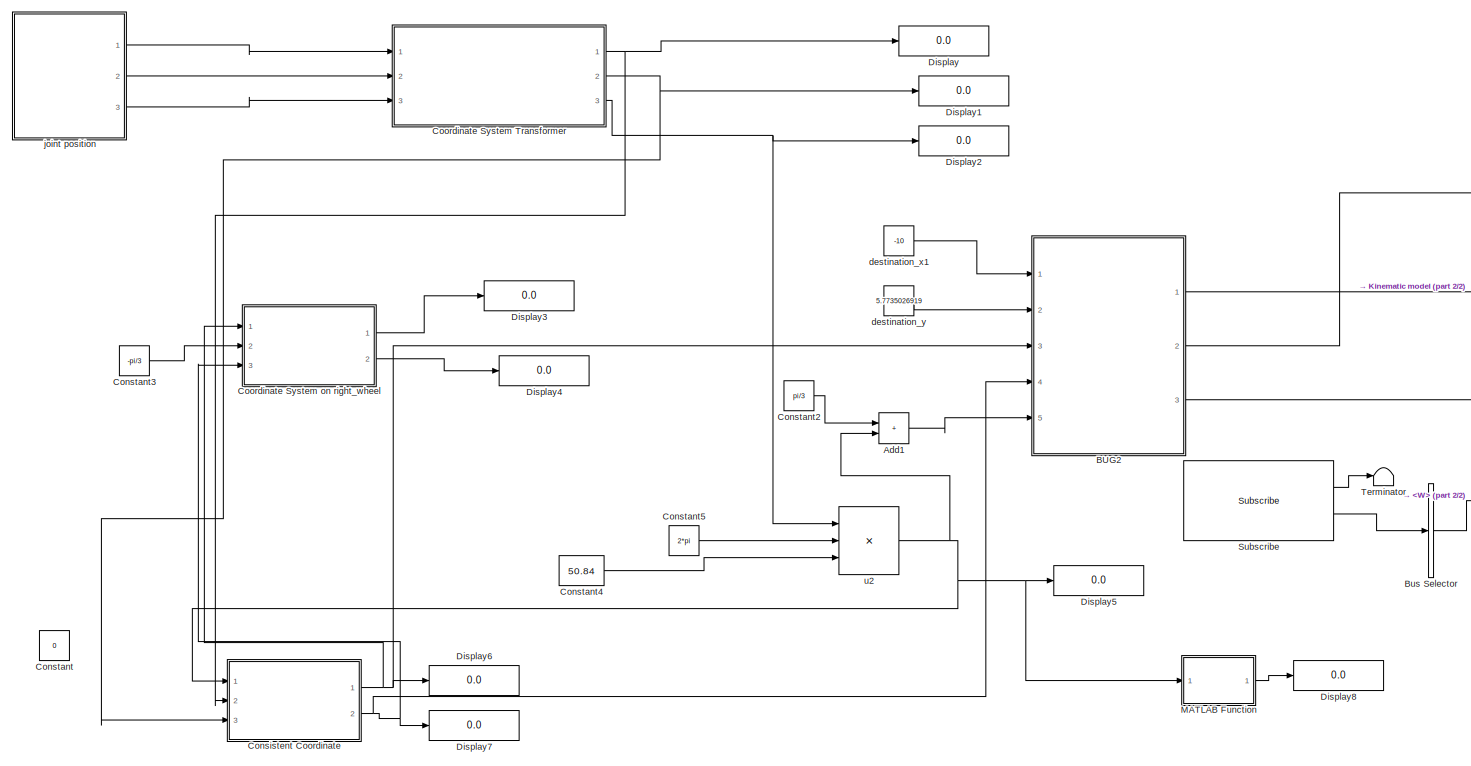
[diagram: root canvas - part 1/2, most of the canvas]
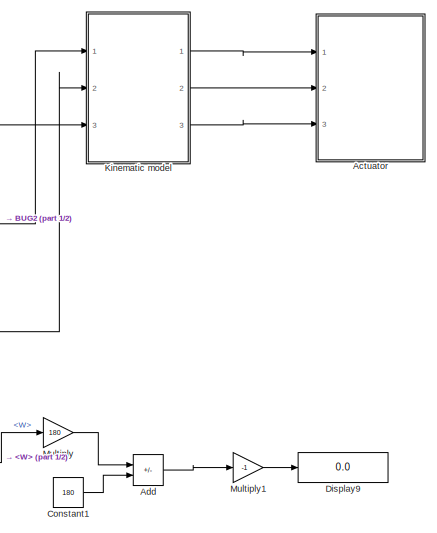
[diagram: root canvas - part 2/2, middle right region]
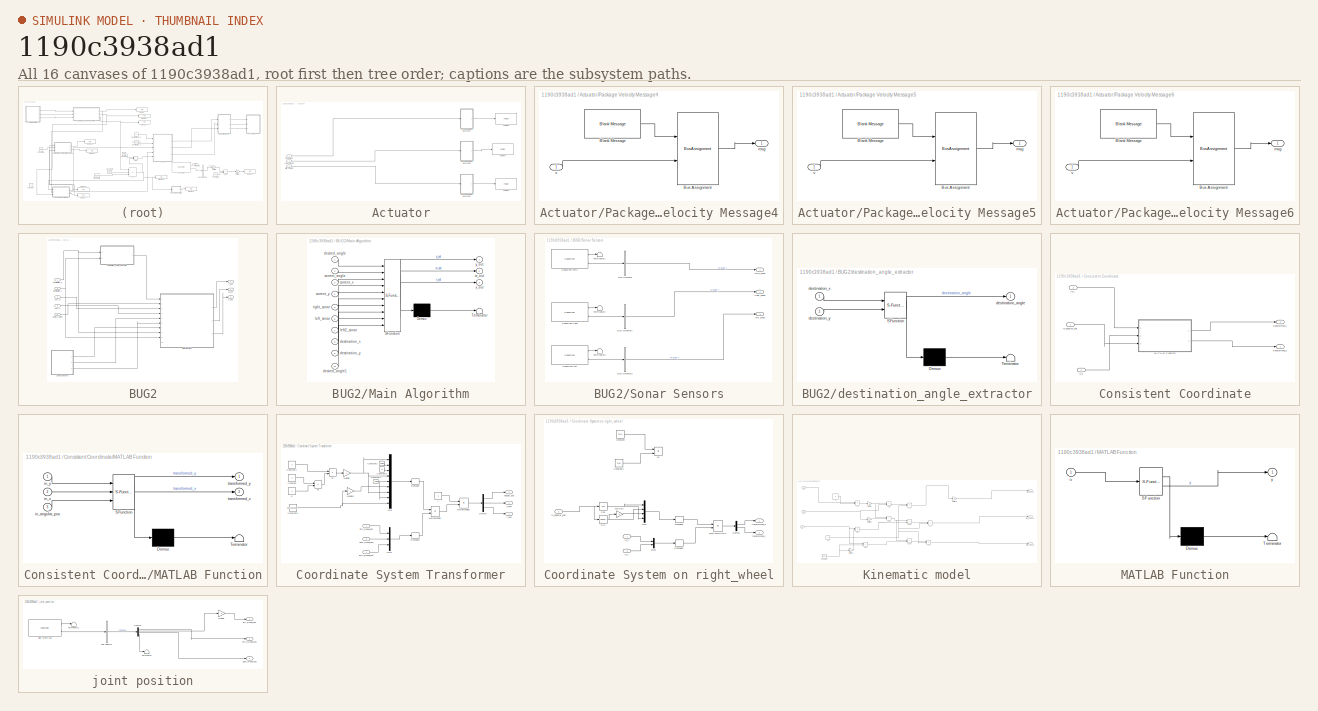
[diagram: thumbnail index - all 16 canvases of the model, root first then tree order]
MODEL slx_1190c3938ad1
KIND model
CONFIG AbsTol = auto
CONFIG EnableMultiTasking = off
CONFIG FixedStep = auto
CONFIG MaxStep = auto
CONFIG MinStep = auto
CONFIG RelTol = 1e-3
CONFIG SampleTimeConstraint = Unconstrained
CONFIG Solver = VariableStepAuto
CONFIG SolverName = VariableStepAuto
CONFIG StartTime = 0.0
CONFIG StopTime = inf
BLOCK [SubSystem] Actuator
  Ports = [3]
  RequestExecContextInheritance = off
BLOCK [SubSystem] Actuator/Package Velocity Message4
  Ports = [1, 1]
  RequestExecContextInheritance = off
BLOCK [Reference] Actuator/Package Velocity Message4/Blank Message  REF=robotlib/Blank Message
  Ports = [0, 1]
  SourceBlock = robotlib/Blank Message
  SourceProductBaseCode = RR
  SourceType = ROS Blank Message
BLOCK [BusAssignment] Actuator/Package Velocity Message4/Bus Assignment
  AssignedSignals = Data
  Ports = [2, 1]
BLOCK [Outport] Actuator/Package Velocity Message4/msg
  VectorParamsAs1DForOutWhenUnconnected = off
BLOCK [Inport] Actuator/Package Velocity Message4/v
BLOCK [SubSystem] Actuator/Package Velocity Message5
  Ports = [1, 1]
  RequestExecContextInheritance = off
BLOCK [Reference] Actuator/Package Velocity Message5/Blank Message  REF=robotlib/Blank Message
  Ports = [0, 1]
  SourceBlock = robotlib/Blank Message
  SourceProductBaseCode = RR
  SourceType = ROS Blank Message
BLOCK [BusAssignment] Actuator/Package Velocity Message5/Bus Assignment
  AssignedSignals = Data
  Ports = [2, 1]
BLOCK [Outport] Actuator/Package Velocity Message5/msg
  VectorParamsAs1DForOutWhenUnconnected = off
BLOCK [Inport] Actuator/Package Velocity Message5/v
BLOCK [SubSystem] Actuator/Package Velocity Message6
  Ports = [1, 1]
  RequestExecContextInheritance = off
BLOCK [Reference] Actuator/Package Velocity Message6/Blank Message  REF=robotlib/Blank Message
  Ports = [0, 1]
  SourceBlock = robotlib/Blank Message
  SourceProductBaseCode = RR
  SourceType = ROS Blank Message
BLOCK [BusAssignment] Actuator/Package Velocity Message6/Bus Assignment
  AssignedSignals = Data
  Ports = [2, 1]
BLOCK [Outport] Actuator/Package Velocity Message6/msg
  VectorParamsAs1DForOutWhenUnconnected = off
BLOCK [Inport] Actuator/Package Velocity Message6/v
BLOCK [Reference] Actuator/Publish4  REF=robotlib/Publish
  Ports = [1]
  SourceBlock = robotlib/Publish
  SourceProductBaseCode = RR
  SourceType = ROS Publish
BLOCK [Reference] Actuator/Publish5  REF=robotlib/Publish
  Ports = [1]
  SourceBlock = robotlib/Publish
  SourceProductBaseCode = RR
  SourceType = ROS Publish
BLOCK [Reference] Actuator/Publish6  REF=robotlib/Publish
  Ports = [1]
  SourceBlock = robotlib/Publish
  SourceProductBaseCode = RR
  SourceType = ROS Publish
BLOCK [Inport] Actuator/left2_speed
  Port = 3
BLOCK [Inport] Actuator/left_speed
BLOCK [Inport] Actuator/right_speed
  Port = 2
BLOCK [Sum] Add
  IconShape = rectangular
  Inputs = +-
  Ports = [2, 1]
BLOCK [Sum] Add1
  IconShape = rectangular
  Ports = [2, 1]
BLOCK [SubSystem] BUG2
  Ports = [5, 3]
  RequestExecContextInheritance = off
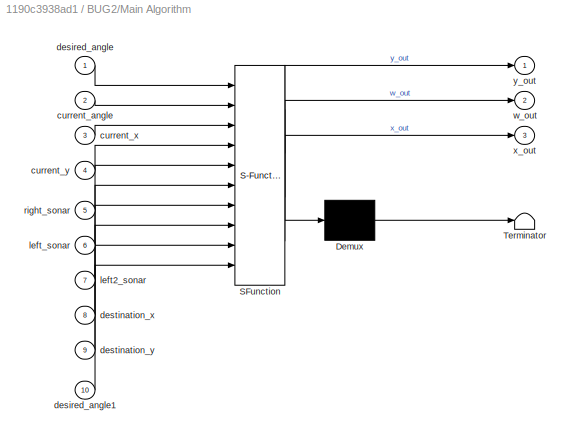
BLOCK [SubSystem] BUG2/Main Algorithm
  ErrorFcn = Stateflow.Translate.translate
  PermitHierarchicalResolution = ExplicitOnly
  Ports = [10, 3]
  RequestExecContextInheritance = off
  SFBlockType = Chart
  TreatAsAtomicUnit = on
BLOCK [Demux] BUG2/Main Algorithm/ Demux 
  Outputs = 1
  Ports = [1, 1]
BLOCK [S-Function] BUG2/Main Algorithm/ SFunction 
  EnableBusSupport = on
  FunctionName = sf_sfun
  PortCounts = [10 4]
  Ports = [10, 4]
  SFcnIsStateOwnerBlock = off
  SFunctionDeploymentMode = off
  Tag = Stateflow S-Function 3
BLOCK [Terminator] BUG2/Main Algorithm/ Terminator 
BLOCK [Inport] BUG2/Main Algorithm/current_angle
  Port = 2
BLOCK [Inport] BUG2/Main Algorithm/current_x
  Port = 3
BLOCK [Inport] BUG2/Main Algorithm/current_y
  Port = 4
BLOCK [Inport] BUG2/Main Algorithm/desired_angle
BLOCK [Inport] BUG2/Main Algorithm/desired_angle1
  Port = 10
BLOCK [Inport] BUG2/Main Algorithm/destination_x
  Port = 8
BLOCK [Inport] BUG2/Main Algorithm/destination_y
  Port = 9
BLOCK [Inport] BUG2/Main Algorithm/left2_sonar
  Port = 7
BLOCK [Inport] BUG2/Main Algorithm/left_sonar
  Port = 6
BLOCK [Inport] BUG2/Main Algorithm/right_sonar
  Port = 5
BLOCK [Outport] BUG2/Main Algorithm/w_out
  Port = 2
BLOCK [Outport] BUG2/Main Algorithm/x_out
  Port = 3
BLOCK [Outport] BUG2/Main Algorithm/y_out
BLOCK [SubSystem] BUG2/Sonar Sensors
  Ports = [0, 3]
  RequestExecContextInheritance = off
BLOCK [BusSelector] BUG2/Sonar Sensors/Bus Selector
  OutputSignals = Range_
  Ports = [1, 1]
BLOCK [BusSelector] BUG2/Sonar Sensors/Bus Selector1
  OutputSignals = Range_
  Ports = [1, 1]
BLOCK [BusSelector] BUG2/Sonar Sensors/Bus Selector2
  OutputSignals = Range_
  Ports = [1, 1]
BLOCK [Reference] BUG2/Sonar Sensors/Subscribe left  REF=robotlib/Subscribe
  Ports = [0, 2]
  SourceBlock = robotlib/Subscribe
  SourceProductBaseCode = RR
  SourceType = ROS Subscribe
BLOCK [Reference] BUG2/Sonar Sensors/Subscribe left2  REF=robotlib/Subscribe
  Ports = [0, 2]
  SourceBlock = robotlib/Subscribe
  SourceProductBaseCode = RR
  SourceType = ROS Subscribe
BLOCK [Reference] BUG2/Sonar Sensors/Subscribe right  REF=robotlib/Subscribe
  Ports = [0, 2]
  SourceBlock = robotlib/Subscribe
  SourceProductBaseCode = RR
  SourceType = ROS Subscribe
BLOCK [Terminator] BUG2/Sonar Sensors/Terminator1
BLOCK [Terminator] BUG2/Sonar Sensors/Terminator2
BLOCK [Terminator] BUG2/Sonar Sensors/Terminator3
BLOCK [Outport] BUG2/Sonar Sensors/left2_sonar
BLOCK [Outport] BUG2/Sonar Sensors/left_sonar
  Port = 3
BLOCK [Outport] BUG2/Sonar Sensors/right_sonar
  Port = 2
BLOCK [Inport] BUG2/angle_radian
  Port = 5
BLOCK [Inport] BUG2/curr_x
  Port = 3
BLOCK [Inport] BUG2/curr_y
  Port = 4
BLOCK [SubSystem] BUG2/destination_angle_extractor
  ErrorFcn = Stateflow.Translate.translate
  PermitHierarchicalResolution = ExplicitOnly
  Ports = [2, 1]
  RequestExecContextInheritance = off
  SFBlockType = MATLAB Function
  TreatAsAtomicUnit = on
BLOCK [Demux] BUG2/destination_angle_extractor/ Demux 
  Outputs = 1
  Ports = [1, 1]
BLOCK [S-Function] BUG2/destination_angle_extractor/ SFunction 
  EnableBusSupport = on
  FunctionName = sf_sfun
  PortCounts = [2 2]
  Ports = [2, 2]
  SFcnIsStateOwnerBlock = off
  SFunctionDeploymentMode = off
  Tag = Stateflow S-Function 2
BLOCK [Terminator] BUG2/destination_angle_extractor/ Terminator 
BLOCK [Outport] BUG2/destination_angle_extractor/destination_angle
BLOCK [Inport] BUG2/destination_angle_extractor/destination_x
BLOCK [Inport] BUG2/destination_angle_extractor/destination_y
  Port = 2
BLOCK [Inport] BUG2/destination_x
BLOCK [Inport] BUG2/destination_y
  Port = 2
BLOCK [Outport] BUG2/w_out
BLOCK [Outport] BUG2/x_out
  Port = 3
BLOCK [Outport] BUG2/y_out
  Port = 2
BLOCK [BusSelector] Bus Selector
  OutputSignals = Pose.Pose.Orientation.W
  Ports = [1, 1]
BLOCK [SubSystem] Consistent Coordinate
  Ports = [3, 2]
  RequestExecContextInheritance = off
BLOCK [SubSystem] Consistent Coordinate/MATLAB Function
  ErrorFcn = Stateflow.Translate.translate
  PermitHierarchicalResolution = ExplicitOnly
  Ports = [3, 2]
  RequestExecContextInheritance = off
  SFBlockType = MATLAB Function
  TreatAsAtomicUnit = on
BLOCK [Demux] Consistent Coordinate/MATLAB Function/ Demux 
  Outputs = 1
  Ports = [1, 1]
BLOCK [S-Function] Consistent Coordinate/MATLAB Function/ SFunction 
  EnableBusSupport = on
  FunctionName = sf_sfun
  PortCounts = [3 3]
  Ports = [3, 3]
  SFcnIsStateOwnerBlock = off
  SFunctionDeploymentMode = off
  Tag = Stateflow S-Function 1
BLOCK [Terminator] Consistent Coordinate/MATLAB Function/ Terminator 
BLOCK [Inport] Consistent Coordinate/MATLAB Function/in_angular_pos
  Port = 3
BLOCK [Inport] Consistent Coordinate/MATLAB Function/in_x
  Port = 2
BLOCK [Inport] Consistent Coordinate/MATLAB Function/in_y
BLOCK [Outport] Consistent Coordinate/MATLAB Function/transformed_x
  Port = 2
BLOCK [Outport] Consistent Coordinate/MATLAB Function/transformed_y
BLOCK [Inport] Consistent Coordinate/in_angular_pos
BLOCK [Inport] Consistent Coordinate/in_x
  Port = 2
BLOCK [Inport] Consistent Coordinate/in_y
  Port = 3
BLOCK [Outport] Consistent Coordinate/transformed_x
BLOCK [Outport] Consistent Coordinate/transformed_y
  Port = 2
BLOCK [Constant] Constant
  Value = 0
BLOCK [Constant] Constant1
  Value = 180
BLOCK [Constant] Constant2
  Value = pi/3
BLOCK [Constant] Constant3
  Value = -pi/3
BLOCK [Constant] Constant4
  Value = 50.84
BLOCK [Constant] Constant5
  Value = 2*pi
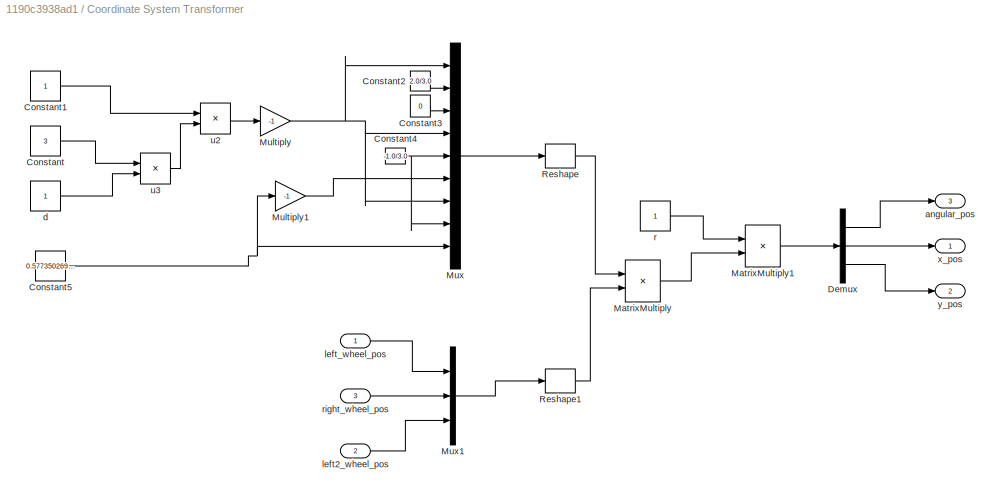
BLOCK [SubSystem] Coordinate System Transformer
  Ports = [3, 3]
  RequestExecContextInheritance = off
BLOCK [Constant] Coordinate System Transformer/Constant
  Value = 3
BLOCK [Constant] Coordinate System Transformer/Constant1
BLOCK [Constant] Coordinate System Transformer/Constant2
  Value = 2.0/3.0
BLOCK [Constant] Coordinate System Transformer/Constant3
  Value = 0
BLOCK [Constant] Coordinate System Transformer/Constant4
  Value = -1.0/3.0
BLOCK [Constant] Coordinate System Transformer/Constant5
  Value = 0.57735026919
BLOCK [Demux] Coordinate System Transformer/Demux
  Outputs = 3
  Ports = [1, 3]
BLOCK [Product] Coordinate System Transformer/MatrixMultiply
  Multiplication = Matrix(*)
  Ports = [2, 1]
BLOCK [Product] Coordinate System Transformer/MatrixMultiply1
  Ports = [2, 1]
BLOCK [Gain] Coordinate System Transformer/Multiply
  Gain = -1
BLOCK [Gain] Coordinate System Transformer/Multiply1
  Gain = -1
BLOCK [Mux] Coordinate System Transformer/Mux
  DisplayOption = bar
  Inputs = 9
  Ports = [9, 1]
BLOCK [Mux] Coordinate System Transformer/Mux1
  DisplayOption = bar
  Inputs = 3
  Ports = [3, 1]
BLOCK [Reshape] Coordinate System Transformer/Reshape
  OutputDimensionality = Customize
  OutputDimensions = [3,3]
  Ports = [1, 1]
BLOCK [Reshape] Coordinate System Transformer/Reshape1
  OutputDimensionality = Customize
  OutputDimensions = [3,1]
  Ports = [1, 1]
BLOCK [Outport] Coordinate System Transformer/angular_pos
  Port = 3
BLOCK [Constant] Coordinate System Transformer/d
BLOCK [Inport] Coordinate System Transformer/left2_wheel_pos
  Port = 2
BLOCK [Inport] Coordinate System Transformer/left_wheel_pos
BLOCK [Constant] Coordinate System Transformer/r
BLOCK [Inport] Coordinate System Transformer/right_wheel_pos
  Port = 3
BLOCK [Product] Coordinate System Transformer/u2
  Inputs = */
  Ports = [2, 1]
BLOCK [Product] Coordinate System Transformer/u3
  Ports = [2, 1]
BLOCK [Outport] Coordinate System Transformer/x_pos
BLOCK [Outport] Coordinate System Transformer/y_pos
  Port = 2
BLOCK [SubSystem] Coordinate System on right_wheel
  Ports = [3, 2]
  RequestExecContextInheritance = off
BLOCK [Constant] Coordinate System on right_wheel/Constant
  Commented = on
  Value = 50.8
BLOCK [Constant] Coordinate System on right_wheel/Constant1
  Commented = on
  Value = 2*pi
BLOCK [Trigonometry] Coordinate System on right_wheel/Cos
  Operator = cos
  Ports = [1, 1]
BLOCK [Demux] Coordinate System on right_wheel/Demux
  Outputs = 2
  Ports = [1, 2]
BLOCK [Product] Coordinate System on right_wheel/MatrixMultiply1
  Multiplication = Matrix(*)
  Ports = [2, 1]
BLOCK [Gain] Coordinate System on right_wheel/Multiply
  Gain = -1
BLOCK [Mux] Coordinate System on right_wheel/Mux
  DisplayOption = bar
  Ports = [4, 1]
BLOCK [Mux] Coordinate System on right_wheel/Mux1
  DisplayOption = bar
  Inputs = 2
  Ports = [2, 1]
BLOCK [Reshape] Coordinate System on right_wheel/Reshape
  OutputDimensionality = Customize
  OutputDimensions = [2,2]
  Ports = [1, 1]
BLOCK [Reshape] Coordinate System on right_wheel/Reshape1
  OutputDimensionality = Customize
  OutputDimensions = [2,1]
  Ports = [1, 1]
BLOCK [Trigonometry] Coordinate System on right_wheel/Sin
  Ports = [1, 1]
BLOCK [Inport] Coordinate System on right_wheel/in_angular_pos
  Port = 2
BLOCK [Inport] Coordinate System on right_wheel/in_x
BLOCK [Inport] Coordinate System on right_wheel/in_y
  Port = 3
BLOCK [Outport] Coordinate System on right_wheel/transformed_x
BLOCK [Outport] Coordinate System on right_wheel/transformed_y
  Port = 2
BLOCK [Product] Coordinate System on right_wheel/u2
  Commented = on
  Inputs = **/
  Ports = [3, 1]
BLOCK [Display] Display
  Decimation = 1
  Ports = [1]
BLOCK [Display] Display1
  Decimation = 1
  Ports = [1]
BLOCK [Display] Display2
  Decimation = 1
  Ports = [1]
BLOCK [Display] Display3
  Decimation = 1
  Ports = [1]
BLOCK [Display] Display4
  Decimation = 1
  Ports = [1]
BLOCK [Display] Display5
  Decimation = 1
  Ports = [1]
BLOCK [Display] Display6
  Decimation = 1
  Ports = [1]
BLOCK [Display] Display7
  Decimation = 1
  Ports = [1]
BLOCK [Display] Display8
  Decimation = 1
  Ports = [1]
BLOCK [Display] Display9
  Decimation = 1
  Ports = [1]
BLOCK [SubSystem] Kinematic model
  Ports = [3, 3]
  RequestExecContextInheritance = off
BLOCK [Sum] Kinematic model/Add
  IconShape = rectangular
  Ports = [2, 1]
BLOCK [Sum] Kinematic model/Add1
  IconShape = rectangular
  Ports = [2, 1]
BLOCK [Sum] Kinematic model/Add2
  IconShape = rectangular
  Ports = [2, 1]
BLOCK [Sum] Kinematic model/Add3
  IconShape = rectangular
  Ports = [2, 1]
BLOCK [Constant] Kinematic model/Constant
  Value = 0.86602
BLOCK [Gain] Kinematic model/Multiply
  Gain = -1
BLOCK [Gain] Kinematic model/Multiply1
  Gain = -0.5
BLOCK [Gain] Kinematic model/Multiply2
  Gain = -1
BLOCK [Gain] Kinematic model/Multiply3
  Gain = -1
BLOCK [Constant] Kinematic model/R
BLOCK [Constant] Kinematic model/d
  SampleTime = -1
  VectorParams1D = off
BLOCK [Product] Kinematic model/dw
  Ports = [2, 1]
BLOCK [Product] Kinematic model/dw1
  Ports = [2, 1]
BLOCK [Product] Kinematic model/dw2
  Ports = [2, 1]
BLOCK [Outport] Kinematic model/left2_speed
  Port = 3
BLOCK [Outport] Kinematic model/left_speed
BLOCK [Outport] Kinematic model/right_speed
  Port = 2
BLOCK [Product] Kinematic model/u1
  Inputs = */
  Ports = [2, 1]
BLOCK [Product] Kinematic model/u2
  Inputs = */
  Ports = [2, 1]
BLOCK [Product] Kinematic model/u3
  Inputs = */
  Ports = [2, 1]
BLOCK [Inport] Kinematic model/vx
  Port = 2
BLOCK [Inport] Kinematic model/vy
  Port = 3
BLOCK [Inport] Kinematic model/w
BLOCK [SubSystem] MATLAB Function
  ErrorFcn = Stateflow.Translate.translate
  PermitHierarchicalResolution = ExplicitOnly
  Ports = [1, 1]
  RequestExecContextInheritance = off
  SFBlockType = MATLAB Function
  TreatAsAtomicUnit = on
BLOCK [Demux] MATLAB Function/ Demux 
  Outputs = 1
  Ports = [1, 1]
BLOCK [S-Function] MATLAB Function/ SFunction 
  EnableBusSupport = on
  FunctionName = sf_sfun
  PortCounts = [1 2]
  Ports = [1, 2]
  SFcnIsStateOwnerBlock = off
  SFunctionDeploymentMode = off
  Tag = Stateflow S-Function 4
BLOCK [Terminator] MATLAB Function/ Terminator 
BLOCK [Inport] MATLAB Function/u
BLOCK [Outport] MATLAB Function/y
BLOCK [Gain] Multiply
  Gain = 180
BLOCK [Gain] Multiply1
  Gain = -1
BLOCK [Reference] Subscribe  REF=robotlib/Subscribe
  Ports = [0, 2]
  SourceBlock = robotlib/Subscribe
  SourceProductBaseCode = RR
  SourceType = ROS Subscribe
BLOCK [Terminator] Terminator
BLOCK [Constant] destination_x1
  Value = -10
BLOCK [Constant] destination_y
  Value = 5.7735026919
BLOCK [SubSystem] joint position
  Ports = [0, 3]
  RequestExecContextInheritance = off
BLOCK [BusSelector] joint position/Bus Selector
  OutputSignals = Position
  Ports = [1, 1]
BLOCK [Demux] joint position/Demux
  Outputs = [1 1 1 -1]
  Ports = [1, 4]
BLOCK [Gain] joint position/Multiply
  Gain = -1
BLOCK [Terminator] joint position/Terminator
BLOCK [Terminator] joint position/Terminator1
BLOCK [Reference] joint position/joint state sub  REF=robotlib/Subscribe
  Ports = [0, 2]
  SourceBlock = robotlib/Subscribe
  SourceProductBaseCode = RR
  SourceType = ROS Subscribe
BLOCK [Outport] joint position/left2_wheel_pos
  Port = 2
BLOCK [Outport] joint position/left_wheel_pos
BLOCK [Outport] joint position/right_wheel_pos
  Port = 3
BLOCK [Product] u2
  Inputs = **/
  Ports = [3, 1]
LINE Actuator/Package Velocity Message4/Blank Message:1 -> Actuator/Package Velocity Message4/Bus Assignment:1
LINE Actuator/Package Velocity Message4/Bus Assignment:1 -> Actuator/Package Velocity Message4/msg:1
LINE Actuator/Package Velocity Message4/v:1 -> Actuator/Package Velocity Message4/Bus Assignment:2
LINE Actuator/Package Velocity Message4:1 -> Actuator/Publish5:1
LINE Actuator/Package Velocity Message5/Blank Message:1 -> Actuator/Package Velocity Message5/Bus Assignment:1
LINE Actuator/Package Velocity Message5/Bus Assignment:1 -> Actuator/Package Velocity Message5/msg:1
LINE Actuator/Package Velocity Message5/v:1 -> Actuator/Package Velocity Message5/Bus Assignment:2
LINE Actuator/Package Velocity Message5:1 -> Actuator/Publish4:1
LINE Actuator/Package Velocity Message6/Blank Message:1 -> Actuator/Package Velocity Message6/Bus Assignment:1
LINE Actuator/Package Velocity Message6/Bus Assignment:1 -> Actuator/Package Velocity Message6/msg:1
LINE Actuator/Package Velocity Message6/v:1 -> Actuator/Package Velocity Message6/Bus Assignment:2
LINE Actuator/Package Velocity Message6:1 -> Actuator/Publish6:1
LINE Actuator/left2_speed:1 -> Actuator/Package Velocity Message6:1
LINE Actuator/left_speed:1 -> Actuator/Package Velocity Message4:1
LINE Actuator/right_speed:1 -> Actuator/Package Velocity Message5:1
LINE Add1:1 -> BUG2:5
LINE Add:1 -> Multiply1:1
LINE BUG2/Main Algorithm:1 -> BUG2/y_out:1
LINE BUG2/Main Algorithm:2 -> BUG2/w_out:1
LINE BUG2/Main Algorithm:3 -> BUG2/x_out:1
LINE BUG2/Sonar Sensors/Bus Selector1:1 -> BUG2/Sonar Sensors/right_sonar:1
LINE BUG2/Sonar Sensors/Bus Selector2:1 -> BUG2/Sonar Sensors/left_sonar:1
LINE BUG2/Sonar Sensors/Bus Selector:1 -> BUG2/Sonar Sensors/left2_sonar:1
LINE BUG2/Sonar Sensors/Subscribe left2:1 -> BUG2/Sonar Sensors/Terminator1:1
LINE BUG2/Sonar Sensors/Subscribe left2:2 -> BUG2/Sonar Sensors/Bus Selector:1
LINE BUG2/Sonar Sensors/Subscribe left:1 -> BUG2/Sonar Sensors/Terminator3:1
LINE BUG2/Sonar Sensors/Subscribe left:2 -> BUG2/Sonar Sensors/Bus Selector2:1
LINE BUG2/Sonar Sensors/Subscribe right:1 -> BUG2/Sonar Sensors/Terminator2:1
LINE BUG2/Sonar Sensors/Subscribe right:2 -> BUG2/Sonar Sensors/Bus Selector1:1
LINE BUG2/Sonar Sensors:1 -> BUG2/Main Algorithm:7
LINE BUG2/Sonar Sensors:2 -> BUG2/Main Algorithm:5
LINE BUG2/Sonar Sensors:3 -> BUG2/Main Algorithm:6
LINE BUG2/angle_radian:1 -> BUG2/Main Algorithm:2
LINE BUG2/curr_x:1 -> BUG2/Main Algorithm:3
LINE BUG2/curr_y:1 -> BUG2/Main Algorithm:4
LINE BUG2/destination_angle_extractor:1 -> BUG2/Main Algorithm:1
NET BUG2/destination_x:1 -> BUG2/Main Algorithm:8, BUG2/destination_angle_extractor:1
NET BUG2/destination_y:1 -> BUG2/Main Algorithm:9, BUG2/destination_angle_extractor:2
LINE BUG2:1 -> Kinematic model:1
LINE BUG2:2 -> Kinematic model:3
LINE BUG2:3 -> Kinematic model:2
LINE Bus Selector:1 -> Multiply:1
LINE Consistent Coordinate/MATLAB Function:1 -> Consistent Coordinate/transformed_y:1
LINE Consistent Coordinate/MATLAB Function:2 -> Consistent Coordinate/transformed_x:1
LINE Consistent Coordinate/in_angular_pos:1 -> Consistent Coordinate/MATLAB Function:3
LINE Consistent Coordinate/in_x:1 -> Consistent Coordinate/MATLAB Function:2
LINE Consistent Coordinate/in_y:1 -> Consistent Coordinate/MATLAB Function:1
NET Consistent Coordinate:1 -> BUG2:3, Coordinate System on right_wheel:1, Display6:1
NET Consistent Coordinate:2 -> BUG2:4, Coordinate System on right_wheel:3, Display7:1
LINE Constant1:1 -> Add:2
LINE Constant2:1 -> Add1:1
LINE Constant3:1 -> Coordinate System on right_wheel:2
LINE Constant4:1 -> u2:3
LINE Constant5:1 -> u2:2
LINE Coordinate System Transformer/Constant1:1 -> Coordinate System Transformer/u2:1
LINE Coordinate System Transformer/Constant2:1 -> Coordinate System Transformer/Mux:2
LINE Coordinate System Transformer/Constant3:1 -> Coordinate System Transformer/Mux:3
NET Coordinate System Transformer/Constant4:1 -> Coordinate System Transformer/Mux:5, Coordinate System Transformer/Mux:8
NET Coordinate System Transformer/Constant5:1 -> Coordinate System Transformer/Multiply1:1, Coordinate System Transformer/Mux:9
LINE Coordinate System Transformer/Constant:1 -> Coordinate System Transformer/u3:1
LINE Coordinate System Transformer/Demux:1 -> Coordinate System Transformer/angular_pos:1
LINE Coordinate System Transformer/Demux:2 -> Coordinate System Transformer/x_pos:1
LINE Coordinate System Transformer/Demux:3 -> Coordinate System Transformer/y_pos:1
LINE Coordinate System Transformer/MatrixMultiply1:1 -> Coordinate System Transformer/Demux:1
LINE Coordinate System Transformer/MatrixMultiply:1 -> Coordinate System Transformer/MatrixMultiply1:2
LINE Coordinate System Transformer/Multiply1:1 -> Coordinate System Transformer/Mux:6
NET Coordinate System Transformer/Multiply:1 -> Coordinate System Transformer/Mux:1, Coordinate System Transformer/Mux:4, Coordinate System Transformer/Mux:7
LINE Coordinate System Transformer/Mux1:1 -> Coordinate System Transformer/Reshape1:1
LINE Coordinate System Transformer/Mux:1 -> Coordinate System Transformer/Reshape:1
LINE Coordinate System Transformer/Reshape1:1 -> Coordinate System Transformer/MatrixMultiply:2
LINE Coordinate System Transformer/Reshape:1 -> Coordinate System Transformer/MatrixMultiply:1
LINE Coordinate System Transformer/d:1 -> Coordinate System Transformer/u3:2
LINE Coordinate System Transformer/left2_wheel_pos:1 -> Coordinate System Transformer/Mux1:3
LINE Coordinate System Transformer/left_wheel_pos:1 -> Coordinate System Transformer/Mux1:1
LINE Coordinate System Transformer/r:1 -> Coordinate System Transformer/MatrixMultiply1:1
LINE Coordinate System Transformer/right_wheel_pos:1 -> Coordinate System Transformer/Mux1:2
LINE Coordinate System Transformer/u2:1 -> Coordinate System Transformer/Multiply:1
LINE Coordinate System Transformer/u3:1 -> Coordinate System Transformer/u2:2
NET Coordinate System Transformer:1 -> Consistent Coordinate:2, Display:1
NET Coordinate System Transformer:2 -> Consistent Coordinate:3, Display1:1
NET Coordinate System Transformer:3 -> Display2:1, u2:1
LINE Coordinate System on right_wheel/Constant1:1 -> Coordinate System on right_wheel/u2:3
LINE Coordinate System on right_wheel/Constant:1 -> Coordinate System on right_wheel/u2:1
NET Coordinate System on right_wheel/Cos:1 -> Coordinate System on right_wheel/Mux:1, Coordinate System on right_wheel/Mux:4
LINE Coordinate System on right_wheel/Demux:1 -> Coordinate System on right_wheel/transformed_x:1
LINE Coordinate System on right_wheel/Demux:2 -> Coordinate System on right_wheel/transformed_y:1
LINE Coordinate System on right_wheel/MatrixMultiply1:1 -> Coordinate System on right_wheel/Demux:1
LINE Coordinate System on right_wheel/Multiply:1 -> Coordinate System on right_wheel/Mux:3
LINE Coordinate System on right_wheel/Mux1:1 -> Coordinate System on right_wheel/Reshape1:1
LINE Coordinate System on right_wheel/Mux:1 -> Coordinate System on right_wheel/Reshape:1
LINE Coordinate System on right_wheel/Reshape1:1 -> Coordinate System on right_wheel/MatrixMultiply1:2
LINE Coordinate System on right_wheel/Reshape:1 -> Coordinate System on right_wheel/MatrixMultiply1:1
NET Coordinate System on right_wheel/Sin:1 -> Coordinate System on right_wheel/Multiply:1, Coordinate System on right_wheel/Mux:2
NET Coordinate System on right_wheel/in_angular_pos:1 -> Coordinate System on right_wheel/Cos:1, Coordinate System on right_wheel/Sin:1
LINE Coordinate System on right_wheel/in_x:1 -> Coordinate System on right_wheel/Mux1:1
LINE Coordinate System on right_wheel/in_y:1 -> Coordinate System on right_wheel/Mux1:2
LINE Coordinate System on right_wheel:1 -> Display3:1
LINE Coordinate System on right_wheel:2 -> Display4:1
NET Kinematic model/Add1:1 -> Kinematic model/Add2:1, Kinematic model/Add3:1
LINE Kinematic model/Add2:1 -> Kinematic model/u2:1
LINE Kinematic model/Add3:1 -> Kinematic model/u3:1
LINE Kinematic model/Add:1 -> Kinematic model/u1:1
NET Kinematic model/Constant:1 -> Kinematic model/Multiply2:1, Kinematic model/dw2:2
LINE Kinematic model/Multiply1:1 -> Kinematic model/Add1:2
LINE Kinematic model/Multiply2:1 -> Kinematic model/dw1:2
LINE Kinematic model/Multiply3:1 -> Kinematic model/left_speed:1
NET Kinematic model/Multiply:1 -> Kinematic model/Add1:1, Kinematic model/Add:1
NET Kinematic model/R:1 -> Kinematic model/u1:2, Kinematic model/u2:2, Kinematic model/u3:2
LINE Kinematic model/d:1 -> Kinematic model/dw:2
LINE Kinematic model/dw1:1 -> Kinematic model/Add2:2
LINE Kinematic model/dw2:1 -> Kinematic model/Add3:2
LINE Kinematic model/dw:1 -> Kinematic model/Multiply:1
LINE Kinematic model/u1:1 -> Kinematic model/Multiply3:1
LINE Kinematic model/u2:1 -> Kinematic model/right_speed:1
LINE Kinematic model/u3:1 -> Kinematic model/left2_speed:1
NET Kinematic model/vx:1 -> Kinematic model/Add:2, Kinematic model/Multiply1:1
NET Kinematic model/vy:1 -> Kinematic model/dw1:1, Kinematic model/dw2:1
LINE Kinematic model/w:1 -> Kinematic model/dw:1
LINE Kinematic model:1 -> Actuator:1
LINE Kinematic model:2 -> Actuator:2
LINE Kinematic model:3 -> Actuator:3
LINE MATLAB Function:1 -> Display8:1
LINE Multiply1:1 -> Display9:1
LINE Multiply:1 -> Add:1
LINE Subscribe:1 -> Terminator:1
LINE Subscribe:2 -> Bus Selector:1
LINE destination_x1:1 -> BUG2:1
LINE destination_y:1 -> BUG2:2
LINE joint position/Bus Selector:1 -> joint position/Demux:1
LINE joint position/Demux:1 -> joint position/left2_wheel_pos:1
LINE joint position/Demux:2 -> joint position/Multiply:1
LINE joint position/Demux:3 -> joint position/right_wheel_pos:1
LINE joint position/Demux:4 -> joint position/Terminator:1
LINE joint position/Multiply:1 -> joint position/left_wheel_pos:1
LINE joint position/joint state sub:1 -> joint position/Terminator1:1
LINE joint position/joint state sub:2 -> joint position/Bus Selector:1
LINE joint position:1 -> Coordinate System Transformer:1
LINE joint position:2 -> Coordinate System Transformer:2
LINE joint position:3 -> Coordinate System Transformer:3
NET u2:1 -> Add1:2, Consistent Coordinate:1, Display5:1, MATLAB Function:1
note: NET lines group one-source signal fan-out (src -> all destinations, sorted); 1:1 wires keep LINE
CHART MATLAB Function states=1 transitions=1
  STATE_LABEL 'eML_blk_kernel()'
  STATE_LABEL 'SCRIPT:\nfunction y = fcn(u)\ny = mod((u*360)/(2*pi),360);\nend'
CHART Consistent Coordinate/MATLAB Function states=1 transitions=1
  STATE_LABEL 'eML_blk_kernel()'
  STATE_LABEL 'SCRIPT:\nfunction [transformed_y,transformed_x] = fcn(in_y, in_x, in_angular_pos)\n    persistent cur_x;\n    persistent cur_y;\n    persistent last_in_y;\n    persistent last_in_x;\n    if(isempty(cur_x))\n        cur_x = 0.0;\n        cur_y = 0.0;\n        last_in_x = 0.0;\n        last_in_y = 0.0;\n    end\n    added_y = (in_y - last_in_y)*cos(-in_angular_pos) + (in_x - last_in_x)*sin(-in_angular_pos);\n   ...<+257ch>'
CHART BUG2/destination_angle_extractor states=1 transitions=1
  STATE_LABEL 'eML_blk_kernel()'
  STATE_LABEL 'SCRIPT:\nfunction destination_angle = fcn(destination_x, destination_y)\n raw_angle = atan(destination_x/destination_y);\n destination_angle = raw_angle;\n if raw_angle >= 0 && (destination_x <0 || destination_y < 0)\n  destination_angle = raw_angle + pi;\n elseif raw_angle < 0 && (destination_y < 0 || destination_x > 0)\n  destination_angle = raw_angle + pi;\n end\n destination_angle = mod(pi + destinatio...<+272ch>'
CHART BUG2/Main Algorithm states=7 transitions=13
  STATE_LABEL 'INIT\nrot_pos_margin = 0.01;\nrot_vel_gain = 2;\nlin_vel_gain = 4;\nw_out = 0;\nx_out = 0;\ny_out = 0;\nsonar_margin = 0.7;\nmax_sonar = 1.4;'
  STATE_LABEL 'INITIAL_ANGLE_CHANGER\nentry:\nw_out = rot_vel_gain*(desired_angle - current_angle)/abs(desired_angle - current_angle);\nx_out = 0;\ny_out = 0;'
  STATE_LABEL 'MOVE_TOWARD\nentry:\nw_out = 0;\ny_out = -1*lin_vel_gain* cos(pi/3);\nx_out = -1*lin_vel_gain* cos(pi/6);'
  STATE_LABEL 'OBSTACLE_AVOID\nentry:\nw_out = 0;\ny_out = -1*lin_vel_gain* sin(pi/3);\nx_out = 1*lin_vel_gain* sin(pi/6);;\n'
  STATE_LABEL 'MOVE_FAR\nentry:\nw_out = rot_vel_gain * (-1);\ny_out = 0;\nx_out = 0;\nmove_around = 1;'
  STATE_LABEL 'MOVE_NEAR\nentry:\nw_out = rot_vel_gain * (1);\ny_out = 0;\nx_out = 0;\nmove_around = 1;'
  STATE_LABEL 'INIT_MOVE_NEAR\nentry:\ny_out = -0.7*lin_vel_gain* cos(pi/3); ;\nx_out = -0.7*lin_vel_gain* cos(pi/6);\nw_out = 0;\nmove_around = 1;'
CHART  states=0 transitions=0
CHART  states=0 transitions=0
CHART  states=0 transitions=0
CHART  states=0 transitions=0
